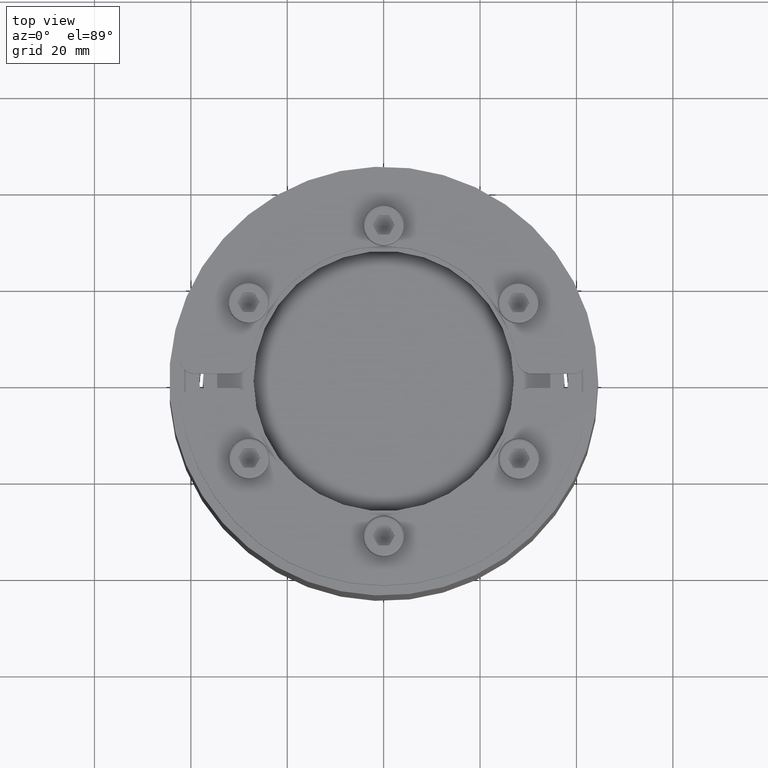
[diagram: clean part render]
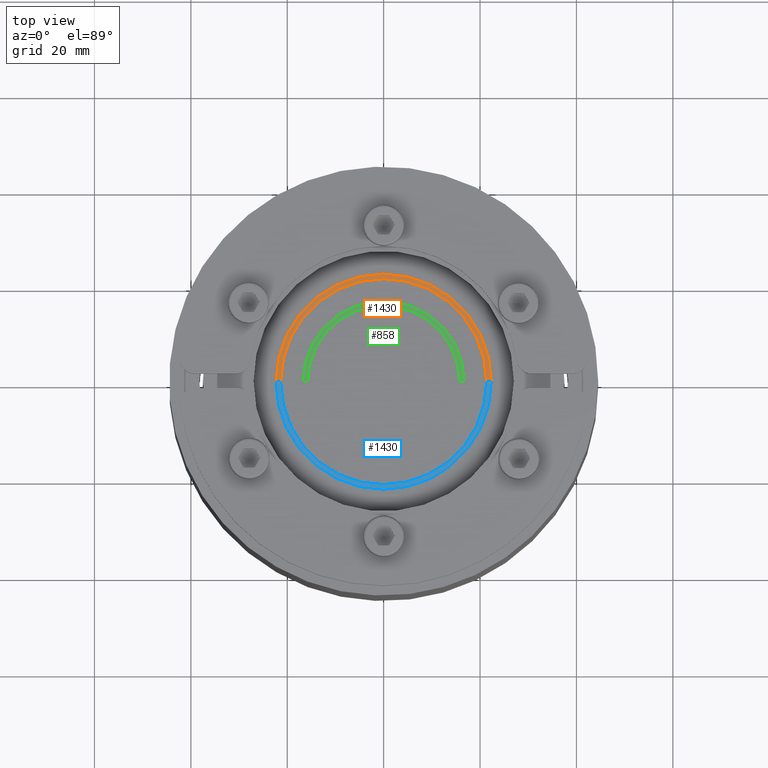
[diagram: same view with three faces highlighted in distinct colors, each labeled with its STEP entity id]
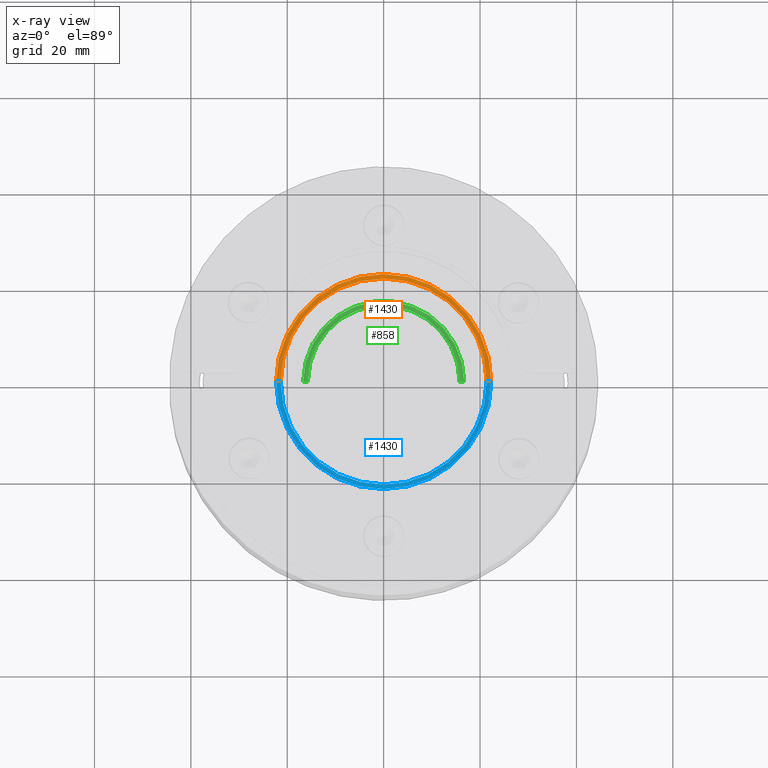
[diagram: x-ray of the same camera — body ghosted, the three highlighted faces saturated]
A machine part, top view with three faces highlighted in distinct colors.
The next image is the same camera in x-ray (body ghosted, the three faces saturated) — at least one of them is partly hidden behind the body in this view.
Their STEP definitions:

[orange] entity #1430 — the highlighted planar face has unit normal (0, -0, 1).
#1389=CARTESIAN_POINT('',(-30.0,4.850287E-015,-21.84375));
#1390=DIRECTION('',(-1.0,0.0,0.0));
#1391=DIRECTION('',(0.0,1.0,0.0));
#1392=AXIS2_PLACEMENT_3D('',#1389,#1390,#1391);
#1393=PLANE('',#1392);
#1394=CARTESIAN_POINT('',(-30.000000000000004,-2.128521E-015,21.375));
#1395=VERTEX_POINT('',#1394);
#1396=CARTESIAN_POINT('',(-30.000000000000004,-2.221877E-015,22.3125));
#1397=VERTEX_POINT('',#1396);
#1398=CARTESIAN_POINT('',(-30.0,-2.128521E-015,21.375));
#1399=DIRECTION('',(0.0,0.0,1.0));
#1400=VECTOR('',#1399,0.9375);
#1401=LINE('',#1398,#1400);
#1402=EDGE_CURVE('',#1395,#1397,#1401,.T.);
#1403=ORIENTED_EDGE('',*,*,#1402,.T.);
#1404=CARTESIAN_POINT('',(-30.0,4.954370E-015,-22.3125));
#1405=VERTEX_POINT('',#1404);
#1406=CARTESIAN_POINT('',(-30.000000000000004,0.0,0.0));
#1407=DIRECTION('',(1.0,0.0,0.0));
#1408=DIRECTION('',(0.0,0.0,-1.0));
#1409=AXIS2_PLACEMENT_3D('',#1406,#1407,#1408);
#1410=CIRCLE('',#1409,22.3125);
#1411=EDGE_CURVE('',#1405,#1397,#1410,.T.);
#1412=ORIENTED_EDGE('',*,*,#1411,.F.);
#1413=CARTESIAN_POINT('',(-30.0,4.746203E-015,-21.375));
#1414=VERTEX_POINT('',#1413);
#1415=CARTESIAN_POINT('',(-30.0,4.746203E-015,-21.375));
#1416=DIRECTION('',(0.0,0.0,-1.0));
#1417=VECTOR('',#1416,0.9375);
#1418=LINE('',#1415,#1417);
#1419=EDGE_CURVE('',#1414,#1405,#1418,.T.);
#1420=ORIENTED_EDGE('',*,*,#1419,.F.);
#1421=CARTESIAN_POINT('',(-30.000000000000004,0.0,0.0));
#1422=DIRECTION('',(1.0,0.0,0.0));
#1423=DIRECTION('',(0.0,0.0,-1.0));
#1424=AXIS2_PLACEMENT_3D('',#1421,#1422,#1423);
#1425=CIRCLE('',#1424,21.375);
#1426=EDGE_CURVE('',#1414,#1395,#1425,.T.);
#1427=ORIENTED_EDGE('',*,*,#1426,.T.);
#1428=EDGE_LOOP('',(#1403,#1412,#1420,#1427));
#1429=FACE_OUTER_BOUND('',#1428,.T.);
#1430=ADVANCED_FACE('',(#1429),#1393,.T.);

[blue] entity #1430 — the highlighted planar face has unit normal (-0, -0, 1).
#1389=CARTESIAN_POINT('',(-30.0,4.850287E-015,-21.84375));
#1390=DIRECTION('',(-1.0,0.0,0.0));
#1391=DIRECTION('',(0.0,1.0,0.0));
#1392=AXIS2_PLACEMENT_3D('',#1389,#1390,#1391);
#1393=PLANE('',#1392);
#1394=CARTESIAN_POINT('',(-30.000000000000004,-2.128521E-015,21.375));
#1395=VERTEX_POINT('',#1394);
#1396=CARTESIAN_POINT('',(-30.000000000000004,-2.221877E-015,22.3125));
#1397=VERTEX_POINT('',#1396);
#1398=CARTESIAN_POINT('',(-30.0,-2.128521E-015,21.375));
#1399=DIRECTION('',(0.0,0.0,1.0));
#1400=VECTOR('',#1399,0.9375);
#1401=LINE('',#1398,#1400);
#1402=EDGE_CURVE('',#1395,#1397,#1401,.T.);
#1403=ORIENTED_EDGE('',*,*,#1402,.T.);
#1404=CARTESIAN_POINT('',(-30.0,4.954370E-015,-22.3125));
#1405=VERTEX_POINT('',#1404);
#1406=CARTESIAN_POINT('',(-30.000000000000004,0.0,0.0));
#1407=DIRECTION('',(1.0,0.0,0.0));
#1408=DIRECTION('',(0.0,0.0,-1.0));
#1409=AXIS2_PLACEMENT_3D('',#1406,#1407,#1408);
#1410=CIRCLE('',#1409,22.3125);
#1411=EDGE_CURVE('',#1405,#1397,#1410,.T.);
#1412=ORIENTED_EDGE('',*,*,#1411,.F.);
#1413=CARTESIAN_POINT('',(-30.0,4.746203E-015,-21.375));
#1414=VERTEX_POINT('',#1413);
#1415=CARTESIAN_POINT('',(-30.0,4.746203E-015,-21.375));
#1416=DIRECTION('',(0.0,0.0,-1.0));
#1417=VECTOR('',#1416,0.9375);
#1418=LINE('',#1415,#1417);
#1419=EDGE_CURVE('',#1414,#1405,#1418,.T.);
#1420=ORIENTED_EDGE('',*,*,#1419,.F.);
#1421=CARTESIAN_POINT('',(-30.000000000000004,0.0,0.0));
#1422=DIRECTION('',(1.0,0.0,0.0));
#1423=DIRECTION('',(0.0,0.0,-1.0));
#1424=AXIS2_PLACEMENT_3D('',#1421,#1422,#1423);
#1425=CIRCLE('',#1424,21.375);
#1426=EDGE_CURVE('',#1414,#1395,#1425,.T.);
#1427=ORIENTED_EDGE('',*,*,#1426,.T.);
#1428=EDGE_LOOP('',(#1403,#1412,#1420,#1427));
#1429=FACE_OUTER_BOUND('',#1428,.T.);
#1430=ADVANCED_FACE('',(#1429),#1393,.T.);

[green] entity #858 — the highlighted planar face has unit normal (0, -0, 1).
#817=CARTESIAN_POINT('',(-30.0,3.601286E-015,-16.21875));
#818=DIRECTION('',(-1.0,0.0,0.0));
#819=DIRECTION('',(0.0,1.0,0.0));
#820=AXIS2_PLACEMENT_3D('',#817,#818,#819);
#821=PLANE('',#820);
#822=CARTESIAN_POINT('',(-30.000000000000004,-1.568384E-015,15.750000000000002));
#823=VERTEX_POINT('',#822);
#824=CARTESIAN_POINT('',(-30.000000000000004,-1.661740E-015,16.6875));
#825=VERTEX_POINT('',#824);
#826=CARTESIAN_POINT('',(-30.0,-1.568384E-015,15.750000000000002));
#827=DIRECTION('',(0.0,0.0,1.0));
#828=VECTOR('',#827,0.937499999999998);
#829=LINE('',#826,#828);
#830=EDGE_CURVE('',#823,#825,#829,.T.);
#831=ORIENTED_EDGE('',*,*,#830,.T.);
#832=CARTESIAN_POINT('',(-30.0,3.705369E-015,-16.6875));
#833=VERTEX_POINT('',#832);
#834=CARTESIAN_POINT('',(-30.000000000000004,0.0,0.0));
#835=DIRECTION('',(1.0,0.0,0.0));
#836=DIRECTION('',(0.0,0.0,-1.0));
#837=AXIS2_PLACEMENT_3D('',#834,#835,#836);
#838=CIRCLE('',#837,16.6875);
#839=EDGE_CURVE('',#833,#825,#838,.T.);
#840=ORIENTED_EDGE('',*,*,#839,.F.);
#841=CARTESIAN_POINT('',(-30.0,3.497203E-015,-15.750000000000002));
#842=VERTEX_POINT('',#841);
#843=CARTESIAN_POINT('',(-30.0,3.497203E-015,-15.750000000000002));
#844=DIRECTION('',(0.0,0.0,-1.0));
#845=VECTOR('',#844,0.937499999999998);
#846=LINE('',#843,#845);
#847=EDGE_CURVE('',#842,#833,#846,.T.);
#848=ORIENTED_EDGE('',*,*,#847,.F.);
#849=CARTESIAN_POINT('',(-30.000000000000004,0.0,0.0));
#850=DIRECTION('',(1.0,0.0,0.0));
#851=DIRECTION('',(0.0,0.0,-1.0));
#852=AXIS2_PLACEMENT_3D('',#849,#850,#851);
#853=CIRCLE('',#852,15.750000000000002);
#854=EDGE_CURVE('',#842,#823,#853,.T.);
#855=ORIENTED_EDGE('',*,*,#854,.T.);
#856=EDGE_LOOP('',(#831,#840,#848,#855));
#857=FACE_OUTER_BOUND('',#856,.T.);
#858=ADVANCED_FACE('',(#857),#821,.T.);